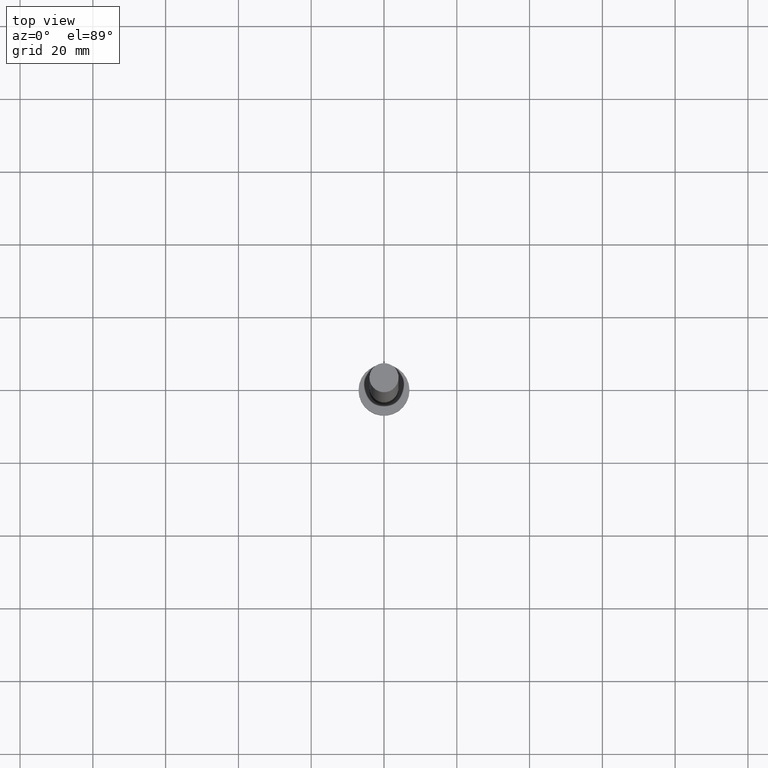
[diagram: clean part render]
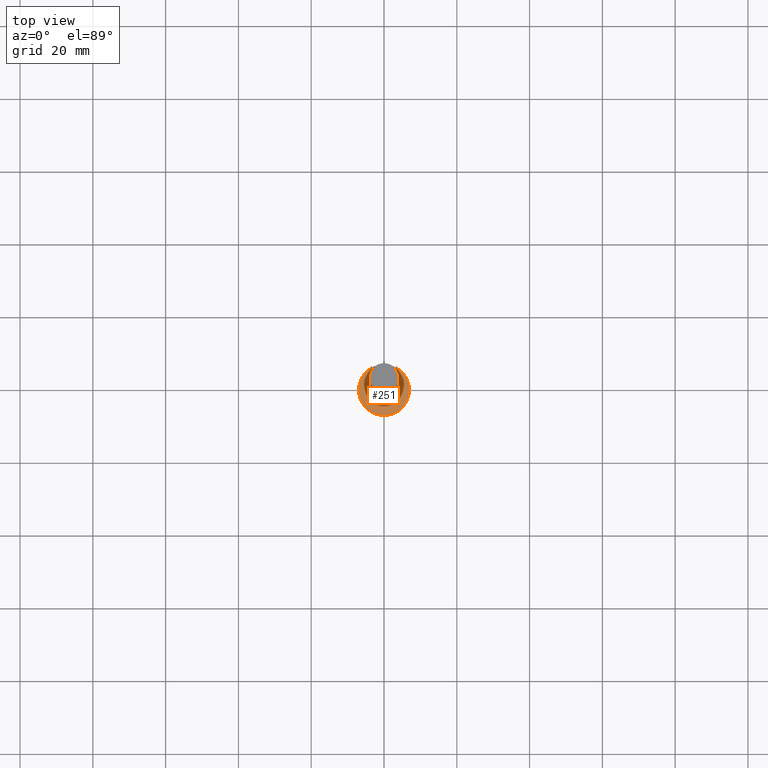
[diagram: same view with one face highlighted and labeled with its STEP entity id]
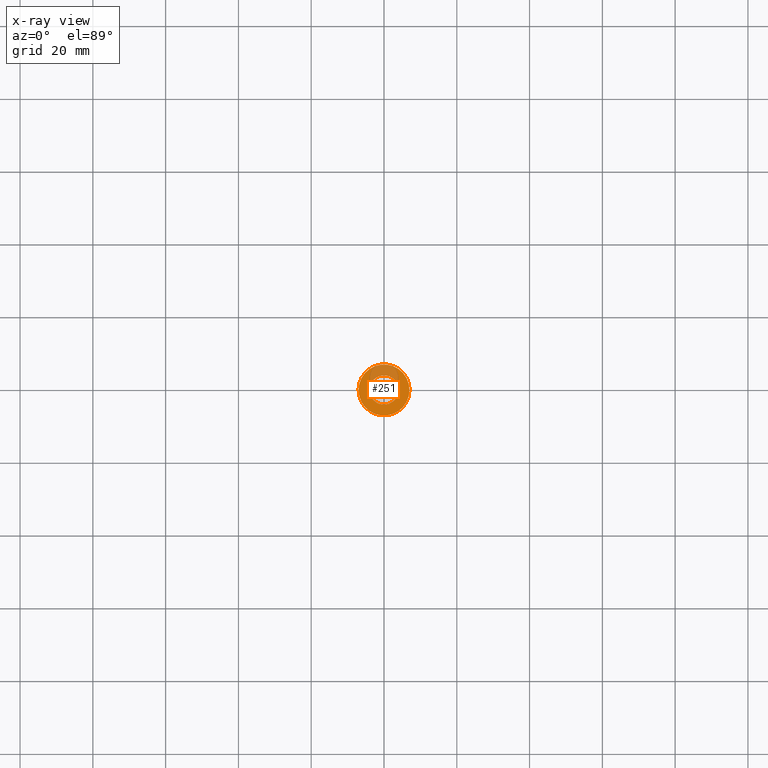
[diagram: x-ray of the same camera — body ghosted, the highlighted face saturated]
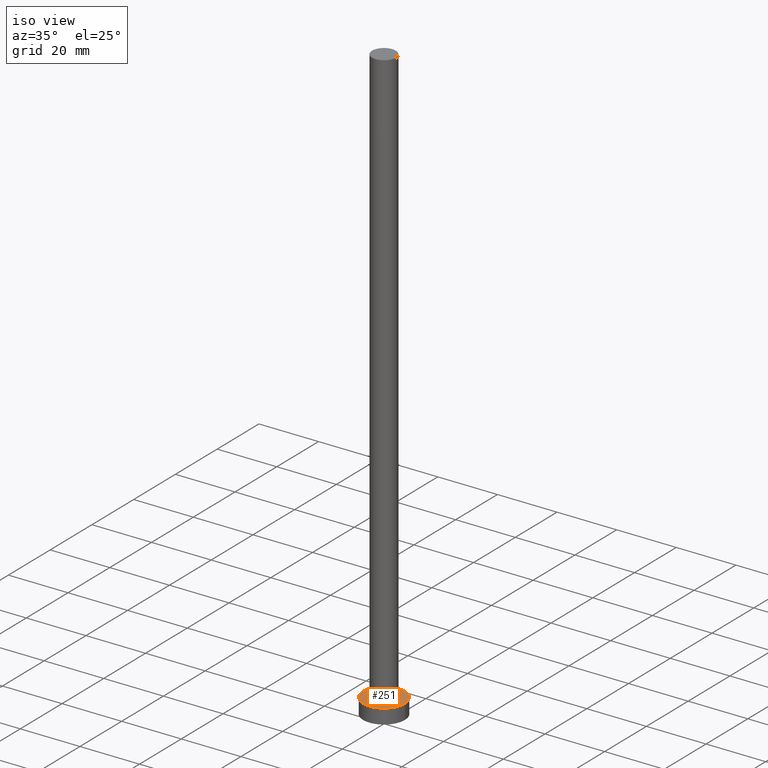
[diagram: same view with one face highlighted and labeled with its STEP entity id]
A machine part, top view. The second image highlights one B-rep face of the part: STEP entity #251.
The next image is the same camera in x-ray: the body ghosted, the highlighted face saturated — about 25% of this face is hidden behind the body in this view.
A second angle (iso view) of the same face is appended — the face is thin or edge-on in the first view.
In plain terms, the highlighted planar face has unit normal (0, 0, 1).
Its self-contained STEP definition (entity closure, byte-faithful):
#1 = CIRCLE ( 'NONE', #254, 4.000000000000000000 ) ;
#21 = CARTESIAN_POINT ( 'NONE',  ( 0.000000000000000000, 0.000000000000000000, 5.000000000000000000 ) ) ;
#23 = ORIENTED_EDGE ( 'NONE', *, *, #115, .T. ) ;
#27 = ORIENTED_EDGE ( 'NONE', *, *, #40, .T. ) ;
#28 = VERTEX_POINT ( 'NONE', #153 ) ;
#29 = EDGE_CURVE ( 'NONE', #164, #28, #1, .T. ) ;
#30 = DIRECTION ( 'NONE',  ( 0.000000000000000000, 0.000000000000000000, 1.000000000000000000 ) ) ;
#33 = CARTESIAN_POINT ( 'NONE',  ( -7.000000000000000000, 0.000000000000000000, 5.000000000000000000 ) ) ;
#38 = PLANE ( 'NONE',  #103 ) ;
#40 = EDGE_CURVE ( 'NONE', #67, #221, #201, .T. ) ;
#45 = EDGE_LOOP ( 'NONE', ( #27, #23 ) ) ;
#50 = DIRECTION ( 'NONE',  ( 1.000000000000000000, 0.000000000000000000, 0.000000000000000000 ) ) ;
#51 = DIRECTION ( 'NONE',  ( 1.000000000000000000, 0.000000000000000000, 0.000000000000000000 ) ) ;
#67 = VERTEX_POINT ( 'NONE', #33 ) ;
#69 = CARTESIAN_POINT ( 'NONE',  ( 0.000000000000000000, 0.000000000000000000, 5.000000000000000000 ) ) ;
#87 = CIRCLE ( 'NONE', #219, 7.000000000000000000 ) ;
#90 = DIRECTION ( 'NONE',  ( 0.000000000000000000, 0.000000000000000000, 1.000000000000000000 ) ) ;
#103 = AXIS2_PLACEMENT_3D ( 'NONE', #21, #141, #178 ) ;
#106 = ORIENTED_EDGE ( 'NONE', *, *, #255, .F. ) ;
#109 = ORIENTED_EDGE ( 'NONE', *, *, #29, .F. ) ;
#115 = EDGE_CURVE ( 'NONE', #221, #67, #87, .T. ) ;
#116 = CARTESIAN_POINT ( 'NONE',  ( 0.000000000000000000, 0.000000000000000000, 5.000000000000000000 ) ) ;
#117 = FACE_OUTER_BOUND ( 'NONE', #45, .T. ) ;
#131 = CARTESIAN_POINT ( 'NONE',  ( 7.000000000000000000, 8.572527594031473190E-16, 5.000000000000000000 ) ) ;
#138 = DIRECTION ( 'NONE',  ( 0.000000000000000000, 0.000000000000000000, 1.000000000000000000 ) ) ;
#139 = AXIS2_PLACEMENT_3D ( 'NONE', #216, #138, #176 ) ;
#141 = DIRECTION ( 'NONE',  ( 0.000000000000000000, 0.000000000000000000, 1.000000000000000000 ) ) ;
#151 = CARTESIAN_POINT ( 'NONE',  ( 4.000000000000000000, 4.898587196589412829E-16, 5.000000000000000000 ) ) ;
#153 = CARTESIAN_POINT ( 'NONE',  ( -4.000000000000000000, 0.000000000000000000, 5.000000000000000000 ) ) ;
#164 = VERTEX_POINT ( 'NONE', #151 ) ;
#170 = DIRECTION ( 'NONE',  ( 1.000000000000000000, 0.000000000000000000, 0.000000000000000000 ) ) ;
#176 = DIRECTION ( 'NONE',  ( 1.000000000000000000, 0.000000000000000000, 0.000000000000000000 ) ) ;
#178 = DIRECTION ( 'NONE',  ( 1.000000000000000000, 0.000000000000000000, -0.000000000000000000 ) ) ;
#181 = EDGE_LOOP ( 'NONE', ( #106, #109 ) ) ;
#186 = CARTESIAN_POINT ( 'NONE',  ( 0.000000000000000000, 0.000000000000000000, 5.000000000000000000 ) ) ;
#189 = DIRECTION ( 'NONE',  ( 0.000000000000000000, 0.000000000000000000, 1.000000000000000000 ) ) ;
#195 = FACE_BOUND ( 'NONE', #181, .T. ) ;
#196 = AXIS2_PLACEMENT_3D ( 'NONE', #186, #90, #170 ) ;
#201 = CIRCLE ( 'NONE', #196, 7.000000000000000000 ) ;
#212 = CIRCLE ( 'NONE', #139, 4.000000000000000000 ) ;
#216 = CARTESIAN_POINT ( 'NONE',  ( 0.000000000000000000, 0.000000000000000000, 5.000000000000000000 ) ) ;
#219 = AXIS2_PLACEMENT_3D ( 'NONE', #69, #189, #51 ) ;
#221 = VERTEX_POINT ( 'NONE', #131 ) ;
#251 = ADVANCED_FACE ( 'NONE', ( #195, #117 ), #38, .T. ) ;
#254 = AXIS2_PLACEMENT_3D ( 'NONE', #116, #30, #50 ) ;
#255 = EDGE_CURVE ( 'NONE', #28, #164, #212, .T. ) ;